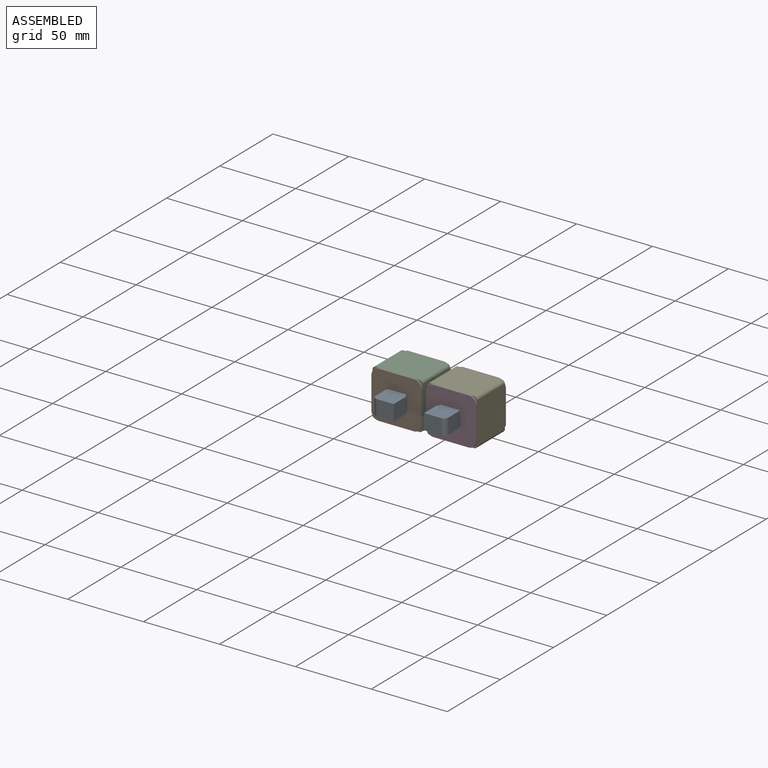
[diagram: assembled view]
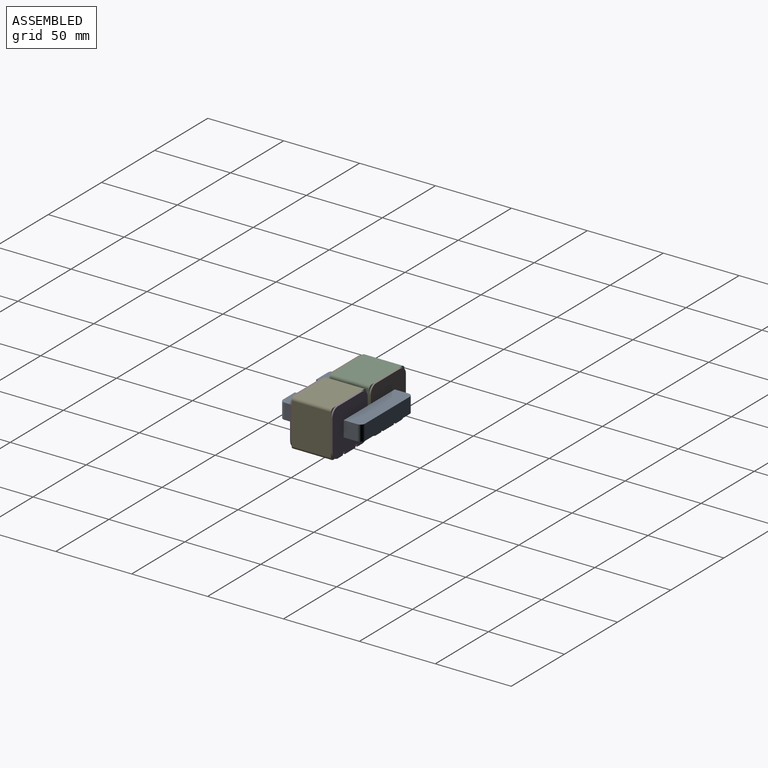
[diagram: assembled view, second angle]
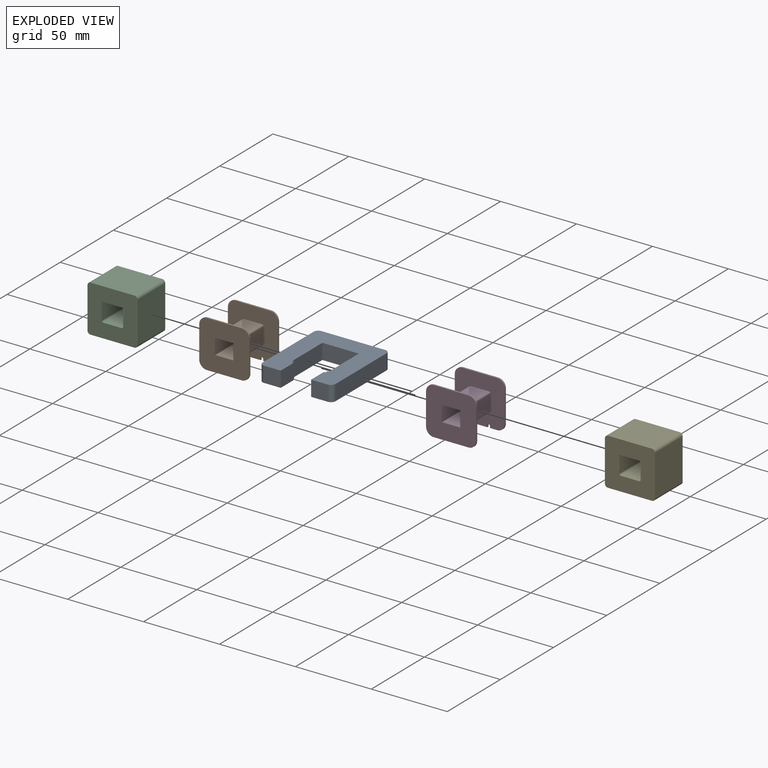
[diagram: exploded view]
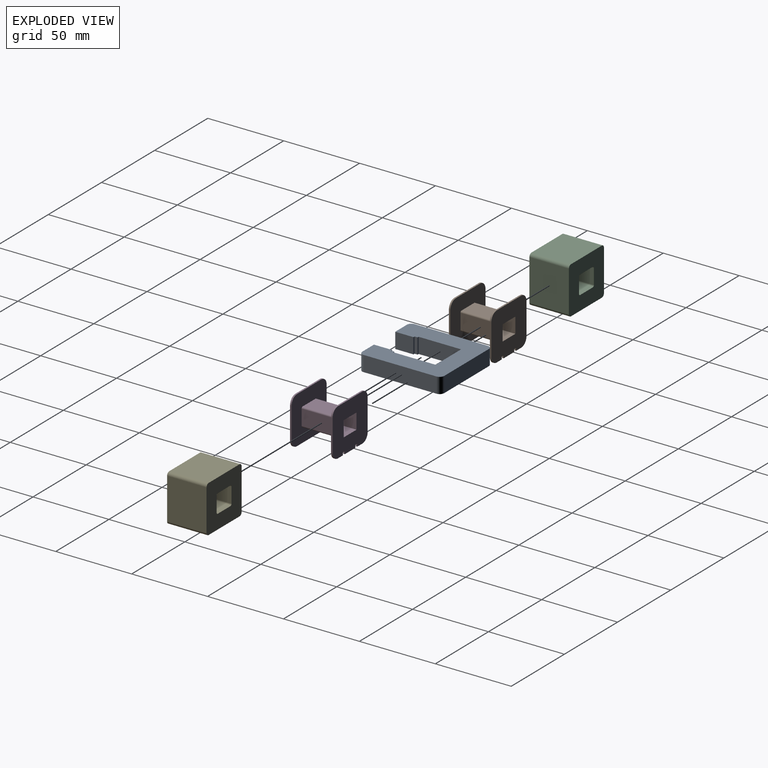
[diagram: exploded view, second angle]
ASSEMBLY  parts=5 mates=4
PART A: 22 faces, bbox 48x54x10.2 mm
  f0: plane 28x10.24mm, normal (-1,0,0), area 286.7mm2, adj f1,f19,f20,f21
  f1: plane 24x10.24mm, normal (0,1,0), area 245.8mm2, adj f0,f2,f20,f21
  f2: plane 28x10.24mm, normal (1,0,0), area 286.7mm2, adj f1,f3,f20,f21
  f3: plane 10.24x1mm, normal (0,-1,0), area 10.2mm2, adj f2,f4,f20,f21
  f4: plane 10.24x2mm, normal (1,0,0), area 20.5mm2, adj f3,f5,f20,f21
  f5: plane 10.24x1mm, normal (0,-1,0), area 10.2mm2, adj f4,f6,f20,f21
  f6: plane 12x10.24mm, normal (1,0,0), area 122.9mm2, adj f5,f7,f20,f21
  f7: plane 11x10.24mm, normal (0,1,0), area 112.6mm2, adj f6,f8,f20,f21
  f8: cylinder r=3mm len=10.24mm, axis (0,0,-1), area 48.3mm2, adj f7,f9,f20,f21
  f9: plane 48x10.24mm, normal (-1,0,0), area 491.5mm2, adj f8,f10,f20,f21
  f10: cylinder r=3mm len=10.24mm, axis (0,0,-1), area 48.3mm2, adj f9,f11,f20,f21
  f11: plane 42x10.24mm, normal (0,-1,0), area 430.1mm2, adj f10,f12,f20,f21
  f12: cylinder r=3mm len=10.24mm, axis (0,0,-1), area 48.3mm2, adj f11,f13,f20,f21
  f13: plane 48x10.24mm, normal (1,0,0), area 491.5mm2, adj f12,f14,f20,f21
  f14: cylinder r=3mm len=10.24mm, axis (0,0,-1), area 48.3mm2, adj f13,f15,f20,f21
  f15: plane 11x10.24mm, normal (0,1,0), area 112.6mm2, adj f14,f16,f20,f21
  f16: plane 12x10.24mm, normal (-1,0,0), area 122.9mm2, adj f15,f17,f20,f21
  f17: plane 10.24x1mm, normal (0,-1,0), area 10.2mm2, adj f16,f18,f20,f21
  f18: plane 10.24x2mm, normal (-1,0,0), area 20.5mm2, adj f17,f19,f20,f21
  f19: plane 10.24x1mm, normal (0,-1,0), area 10.2mm2, adj f0,f18,f20,f21
  f20: plane 54x48mm, normal (0,0,1), area 1628.3mm2, adj f0,f1,f2,f3,f4,f5,f6,f7
  f21: plane 54x48mm, normal (0,0,-1), area 1628.3mm2, adj f0,f1,f2,f3,f4,f5,f6,f7
PART B: 44 faces, bbox 33x31x28 mm
  f0: plane 33x31mm, normal (0,0,-1), area 872.3mm2, adj f1,f2,f5,f6,f7,f8,f9,f10
  f1: plane 4.75x1mm, normal (0,-1,0), area 4.8mm2, adj f0,f3,f6,f39
  f2: plane 10x1mm, normal (0,-1,0), area 10mm2, adj f0,f3,f35,f40
  f3: plane 33x31mm, normal (0,0,1), area 824.7mm2, adj f1,f2,f5,f6,f7,f8,f9,f10
  f4: plane 33x31mm, normal (0,0,1), area 878.7mm2, adj f21,f22,f23,f24,f25,f26,f27,f28
  f5: plane 21x1mm, normal (-1,0,0), area 21mm2, adj f0,f3,f6,f12
  f6: cylinder r=5mm len=5mm, axis (0,0,-1), area 7.9mm2, adj f0,f1,f3,f5
  f7: plane 4.75x1mm, normal (0,-1,0), area 4.8mm2, adj f0,f3,f8,f34
  f8: cylinder r=5mm len=5mm, axis (0,0,-1), area 7.9mm2, adj f0,f3,f7,f9
  f9: plane 21x1mm, normal (1,0,0), area 21mm2, adj f0,f3,f8,f10
  f10: cylinder r=5mm len=5mm, axis (0,0,-1), area 7.9mm2, adj f0,f3,f9,f11
  f11: plane 23x1mm, normal (0,1,0), area 23mm2, adj f0,f3,f10,f12
  f12: cylinder r=5mm len=5mm, axis (0,0,-1), area 7.9mm2, adj f0,f3,f5,f11
  f13: plane 26x10.24mm, normal (-1,0,0), area 266.2mm2, adj f3,f14,f20,f29
  f14: cylinder r=1mm len=26mm, axis (0,0,-1), area 40.8mm2, adj f3,f13,f15,f29
  f15: plane 26x12mm, normal (0,-1,0), area 312mm2, adj f3,f14,f16,f29
  f16: cylinder r=1mm len=26mm, axis (0,0,-1), area 40.8mm2, adj f3,f15,f17,f29
  f17: plane 26x10.24mm, normal (1,0,0), area 266.2mm2, adj f3,f16,f18,f29
  f18: cylinder r=1mm len=26mm, axis (0,0,-1), area 40.8mm2, adj f3,f17,f19,f29
  f19: plane 26x12mm, normal (0,1,0), area 312mm2, adj f3,f18,f20,f29
  f20: cylinder r=1mm len=26mm, axis (0,0,-1), area 40.8mm2, adj f3,f13,f19,f29
  f21: plane 21x1mm, normal (-1,0,0), area 21mm2, adj f4,f22,f28,f29
  f22: cylinder r=5mm len=5mm, axis (0,0,-1), area 7.9mm2, adj f4,f21,f23,f29
  f23: plane 23x1mm, normal (0,-1,0), area 23mm2, adj f4,f22,f24,f29
  f24: cylinder r=5mm len=5mm, axis (0,0,-1), area 7.9mm2, adj f4,f23,f25,f29
  f25: plane 21x1mm, normal (1,0,0), area 21mm2, adj f4,f24,f26,f29
  f26: cylinder r=5mm len=5mm, axis (0,0,-1), area 7.9mm2, adj f4,f25,f27,f29
  f27: plane 23x1mm, normal (0,1,0), area 23mm2, adj f4,f26,f28,f29
  f28: cylinder r=5mm len=5mm, axis (0,0,-1), area 7.9mm2, adj f4,f21,f27,f29
  f29: plane 33x31mm, normal (0,0,-1), area 831mm2, adj f13,f14,f15,f16,f17,f18,f19,f20
  f30: plane 28x12mm, normal (0,-1,0), area 336mm2, adj f0,f4,f31,f33
  f31: plane 28x10.24mm, normal (1,0,0), area 286.7mm2, adj f0,f4,f30,f32
  f32: plane 28x12mm, normal (0,1,0), area 336mm2, adj f0,f4,f31,f33
  f33: plane 28x10.24mm, normal (-1,0,0), area 286.7mm2, adj f0,f4,f30,f32
  f34: plane 1.14x1mm, normal (-1,0,0), area 1.1mm2, adj f0,f3,f7,f36
  f35: plane 1.14x1mm, normal (1,0,0), area 1.1mm2, adj f0,f2,f3,f38
  f36: cylinder r=0.86mm len=1mm, axis (0,0,1), area 1.4mm2, adj f0,f3,f34,f37
  f37: plane 1x0.03mm, normal (0,-1,0), area 0mm2, adj f0,f3,f36,f38
  f38: cylinder r=0.86mm len=1mm, axis (0,0,1), area 1.4mm2, adj f0,f3,f35,f37
  f39: plane 1.14x1mm, normal (1,0,0), area 1.1mm2, adj f0,f1,f3,f41
  f40: plane 1.14x1mm, normal (-1,0,0), area 1.1mm2, adj f0,f2,f3,f42
  f41: cylinder r=0.86mm len=1mm, axis (0,0,1), area 1.4mm2, adj f0,f3,f39,f43
  f42: cylinder r=0.86mm len=1mm, axis (0,0,1), area 1.4mm2, adj f0,f3,f40,f43
  f43: plane 1x0.03mm, normal (0,-1,0), area 0mm2, adj f0,f3,f41,f42
PART C: 18 faces, bbox 33x31x26 mm
  f0: plane 33x31mm, normal (0,0,1), area 849.1mm2, adj f2,f3,f4,f5,f6,f7,f8,f9
  f1: plane 33x31mm, normal (0,0,-1), area 849.1mm2, adj f2,f3,f4,f5,f6,f7,f8,f9
  f2: plane 27x26mm, normal (-1,0,0), area 702mm2, adj f0,f1,f3,f9
  f3: cylinder r=2mm len=26mm, axis (0,0,-1), area 81.7mm2, adj f0,f1,f2,f4
  f4: plane 29x26mm, normal (0,-1,0), area 754mm2, adj f0,f1,f3,f5
  f5: cylinder r=2mm len=26mm, axis (0,0,-1), area 81.7mm2, adj f0,f1,f4,f6
  f6: plane 27x26mm, normal (1,0,0), area 702mm2, adj f0,f1,f5,f7
  f7: cylinder r=2mm len=26mm, axis (0,0,-1), area 81.7mm2, adj f0,f1,f6,f8
  f8: plane 29x26mm, normal (0,1,0), area 754mm2, adj f0,f1,f7,f9
  f9: cylinder r=2mm len=26mm, axis (0,0,-1), area 81.7mm2, adj f0,f1,f2,f8
  f10: plane 26x12mm, normal (0,-1,0), area 312mm2, adj f0,f1,f11,f17
  f11: cylinder r=1mm len=26mm, axis (0,0,1), area 40.8mm2, adj f0,f1,f10,f12
  f12: plane 26x10.24mm, normal (1,0,0), area 266.2mm2, adj f0,f1,f11,f13
  f13: cylinder r=1mm len=26mm, axis (0,0,1), area 40.8mm2, adj f0,f1,f12,f14
  f14: plane 26x12mm, normal (0,1,0), area 312mm2, adj f0,f1,f13,f15
  f15: cylinder r=1mm len=26mm, axis (0,0,1), area 40.8mm2, adj f0,f1,f14,f16
  f16: plane 26x10.24mm, normal (-1,0,0), area 266.2mm2, adj f0,f1,f15,f17
  f17: cylinder r=1mm len=26mm, axis (0,0,1), area 40.8mm2, adj f0,f1,f10,f16
PART D: same geometry as B
PART E: same geometry as C
PLACE A rot(axis=(0,0,1),180deg) t=(-61.7,1.33,-8.52)mm
PLACE B rot(axis=(1,0,0),90deg) t=(-79.7,8.27,-3.4)mm
PLACE C rot(axis=(0,0.71,0.71),180deg) t=(-79.7,-18.73,-3.4)mm
PLACE D rot(axis=(1,0,0),90deg) t=(-43.7,8.27,-3.4)mm
PLACE E rot(axis=(-1,0,0),90deg) t=(-43.7,-18.73,-3.4)mm
MATE fastened B.f33 <-> A.f0  axis (-1,0,0) through (-73.7,-19.73,1.72)mm
MATE fastened D.f13 <-> E.f12  axis (-1,0,0) through (-50.7,-18.73,-3.4)mm
MATE fastened C.f16 <-> B.f13  axis (1,0,0) through (-86.7,-18.73,-3.4)mm
MATE fastened D.f31 <-> A.f2  axis (1,0,0) through (-49.7,-19.73,-8.52)mm
